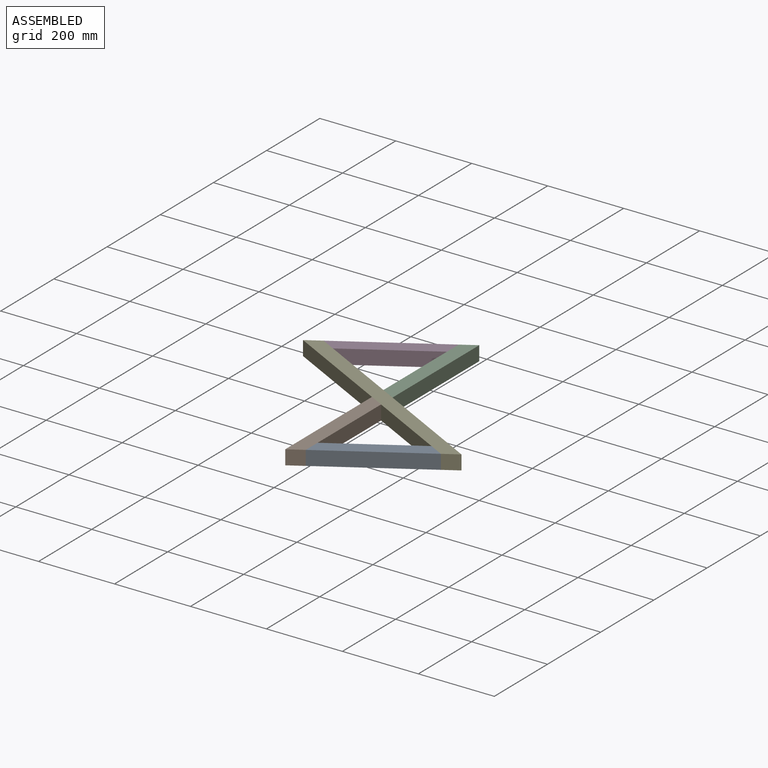
[diagram: assembled view]
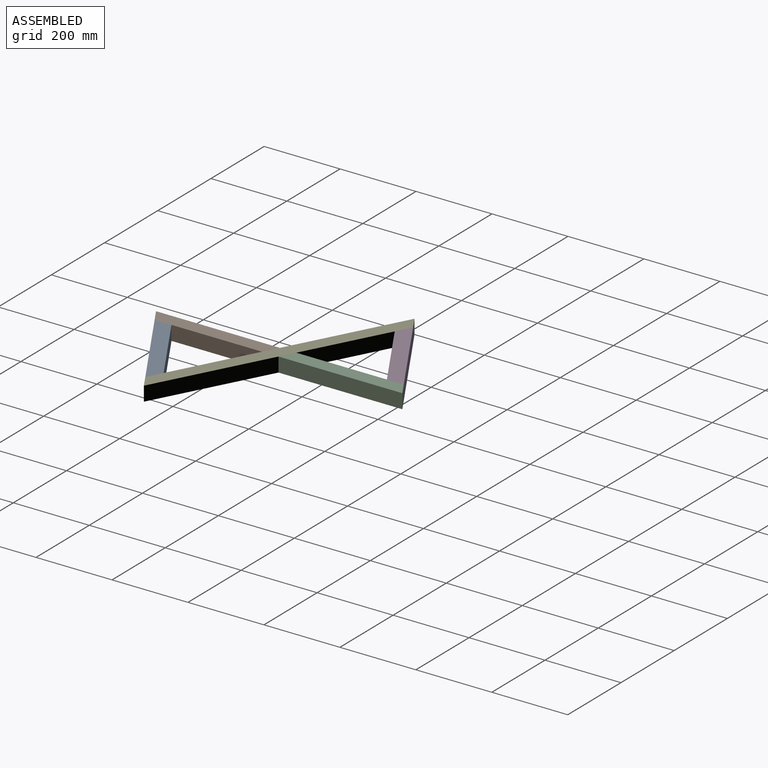
[diagram: assembled view, second angle]
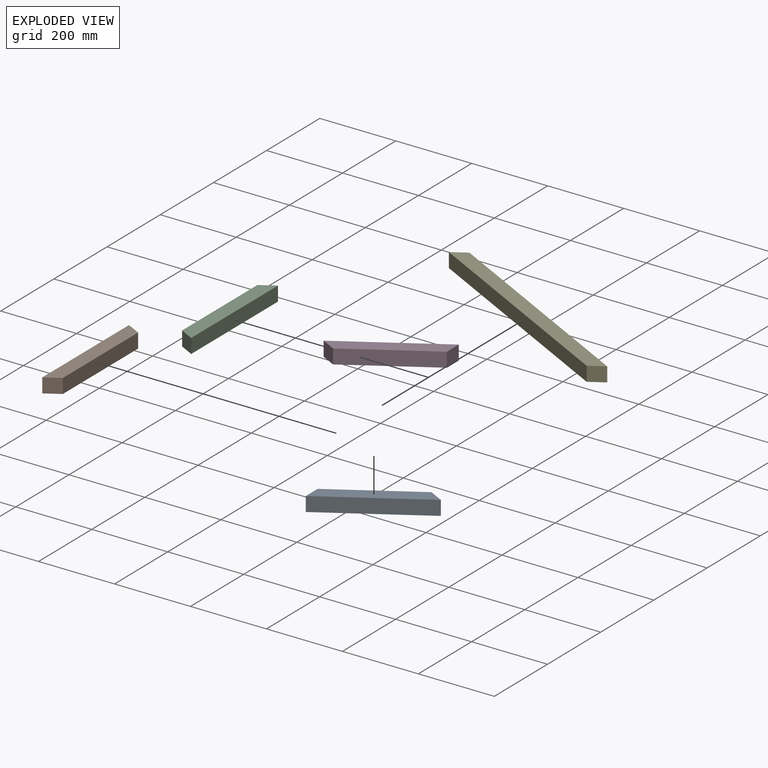
[diagram: exploded view]
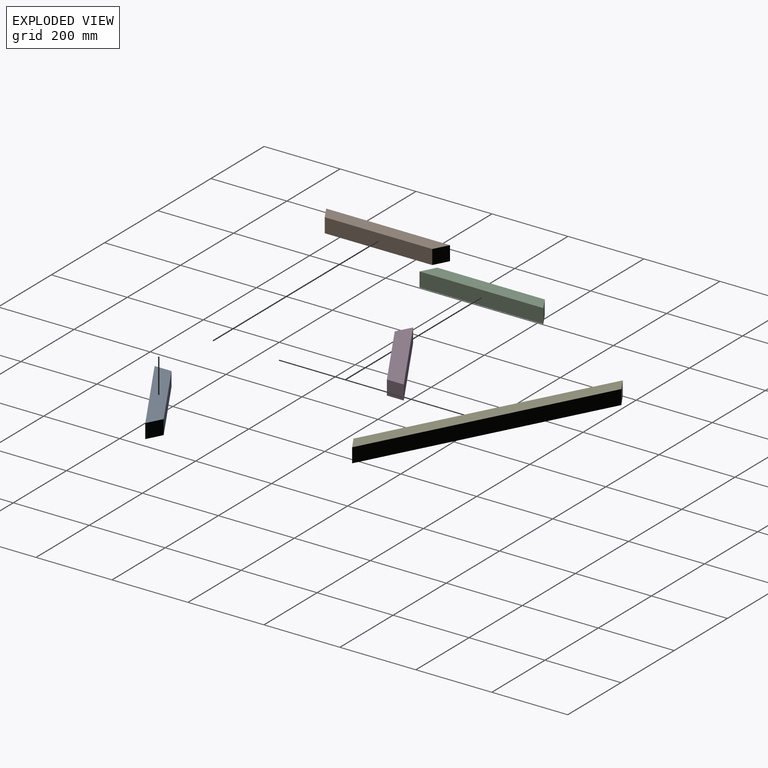
[diagram: exploded view, second angle]
ASSEMBLY  parts=5 mates=4
PART A: 6 faces, bbox 292x38.1x38.1 mm
  f0: plane 292.05x38.1mm, normal (0,1,0), area 11127.1mm2, adj f1,f3,f4,f5
  f1: plane 38.1x38.1mm, normal (-0.86,-0.52,0), area 1694.5mm2, adj f0,f2,f4,f5
  f2: plane 246.16x38.1mm, normal (0,-1,0), area 9378.7mm2, adj f1,f3,f4,f5
  f3: plane 38.1x38.1mm, normal (0.86,-0.52,0), area 1694.5mm2, adj f0,f2,f4,f5
  f4: plane 292.05x38.1mm, normal (0,0,1), area 10252.9mm2, adj f0,f1,f2,f3
  f5: plane 292.05x38.1mm, normal (0,0,-1), area 10252.9mm2, adj f0,f1,f2,f3
PART B: 6 faces, bbox 190.5x279.4x38.1 mm
  f0: plane 242.47x146.02mm, normal (0.86,0.52,0), area 10784.2mm2, adj f1,f3,f4,f5
  f1: plane 44.48x38.1mm, normal (0,1,0), area 1694.5mm2, adj f0,f2,f4,f5
  f2: plane 279.4x168.26mm, normal (-0.86,-0.52,0), area 12426.5mm2, adj f1,f3,f4,f5
  f3: plane 38.1x36.93mm, normal (0.86,-0.52,0), area 1642.3mm2, adj f0,f2,f4,f5
  f4: plane 279.4x190.5mm, normal (0,0,1), area 11605.3mm2, adj f0,f1,f2,f3
  f5: plane 279.4x190.5mm, normal (0,0,-1), area 11605.3mm2, adj f0,f1,f2,f3
PART C: same geometry as B
PART D: same geometry as A
PART E: 6 faces, bbox 38.1x675.2x38.1 mm
  f0: plane 38.1x38.1mm, normal (0.52,0.86,0), area 1694.5mm2, adj f1,f3,f4,f5
  f1: plane 652.3x38.1mm, normal (-1,0,0), area 24852.5mm2, adj f0,f2,f4,f5
  f2: plane 38.1x38.1mm, normal (-0.52,-0.86,0), area 1694.5mm2, adj f1,f3,f4,f5
  f3: plane 652.3x38.1mm, normal (1,0,0), area 24852.5mm2, adj f0,f2,f4,f5
  f4: plane 675.24x38.1mm, normal (0,0,1), area 24852.5mm2, adj f0,f1,f2,f3
  f5: plane 675.24x38.1mm, normal (0,0,-1), area 24852.5mm2, adj f0,f1,f2,f3
PLACE A rot(axis=(0.96,0.27,0),180deg) t=(-134.52,-193.14,119.34)mm
PLACE B rot(axis=(0.96,0.27,0),180deg) t=(98.26,243.9,119.34)mm
PLACE C rot(axis=(-0.27,0.96,0),180deg) t=(-647.57,-188.3,119.34)mm
PLACE D rot(axis=(0,0,1),31.1deg) t=(-404.38,255.01,81.24)mm
PLACE E rot(axis=(0,0,-1),117.9deg) t=(-295.87,14.99,81.24)mm
MATE fastened B.f0 <-> A.f1  axis (1,0,0) through (-255.62,-286.88,100.29)mm
MATE fastened D.f3 <-> C.f0  axis (1,0,0) through (-293.69,342.48,100.29)mm
MATE fastened E.f1 <-> D.f1  axis (0.47,0.88,0) through (-543.88,191.82,100.29)mm
MATE fastened A.f3 <-> E.f3  axis (0.47,0.88,0) through (-5.43,-136.22,100.29)mm
